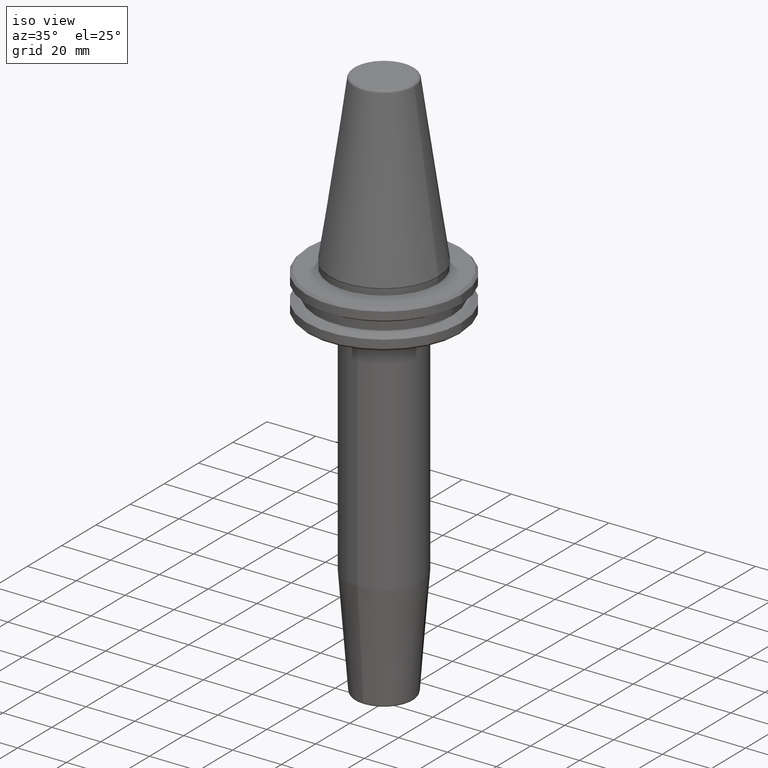
[diagram: clean part render]
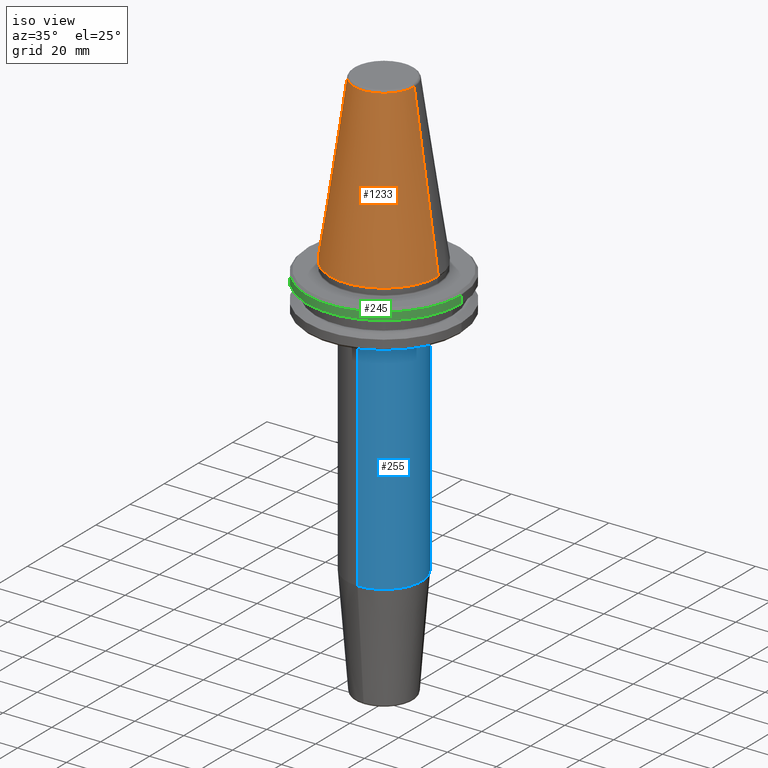
[diagram: same view with three faces highlighted in distinct colors, each labeled with its STEP entity id]
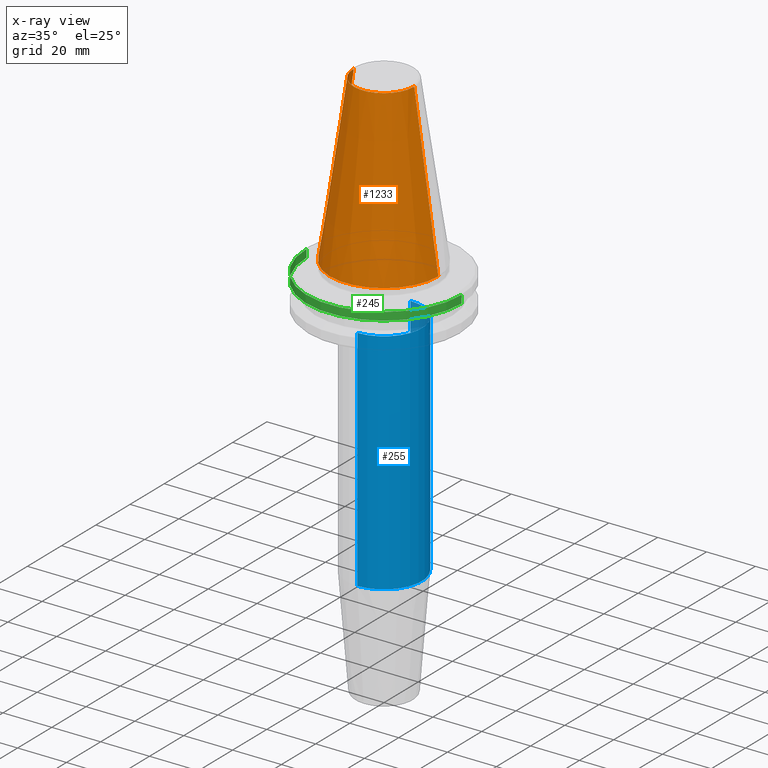
[diagram: x-ray of the same camera — body ghosted, the three highlighted faces saturated]
A machine part, iso view with three faces highlighted in distinct colors.
The next image is the same camera in x-ray (body ghosted, the three faces saturated) — at least one of them is partly hidden behind the body in this view.
Their STEP definitions:

[orange] entity #1233 — the highlighted conical surface has half-angle 8.297 deg.
#84 = DIRECTION ( 'NONE',  ( 1.000000000000000000, 0.0000000000000000000, 0.0000000000000000000 ) ) ;
#139 = AXIS2_PLACEMENT_3D ( 'NONE', #378, #683, #84 ) ;
#141 = VERTEX_POINT ( 'NONE', #157 ) ;
#142 = DIRECTION ( 'NONE',  ( -0.1443082272673071000, 0.0000000000000000000, -0.9895327864921743500 ) ) ;
#147 = CARTESIAN_POINT ( 'NONE',  ( -12.37469537611110800, 0.0000000000000000000, 67.54430822726729400 ) ) ;
#157 = CARTESIAN_POINT ( 'NONE',  ( 22.22500000000000500, 0.0000000000000000000, 0.0000000000000000000 ) ) ;
#196 = CIRCLE ( 'NONE', #139, 12.37469537611110800 ) ;
#224 = CARTESIAN_POINT ( 'NONE',  ( 0.0000000000000000000, 0.0000000000000000000, 0.0000000000000000000 ) ) ;
#238 = CARTESIAN_POINT ( 'NONE',  ( 12.37469537611110800, 2.118620309691397700E-015, 67.54430822726729400 ) ) ;
#271 = CARTESIAN_POINT ( 'NONE',  ( -12.37469537611110800, 0.0000000000000000000, 67.54430822726729400 ) ) ;
#275 = EDGE_LOOP ( 'NONE', ( #1058, #327, #406, #1221 ) ) ;
#327 = ORIENTED_EDGE ( 'NONE', *, *, #1125, .F. ) ;
#333 = DIRECTION ( 'NONE',  ( 1.000000000000000000, 0.0000000000000000000, 0.0000000000000000000 ) ) ;
#378 = CARTESIAN_POINT ( 'NONE',  ( 0.0000000000000000000, 0.0000000000000000000, 67.54430822726729400 ) ) ;
#385 = VECTOR ( 'NONE', #142, 1000.000000000000000 ) ;
#396 = EDGE_CURVE ( 'NONE', #450, #141, #597, .T. ) ;
#406 = ORIENTED_EDGE ( 'NONE', *, *, #607, .T. ) ;
#427 = DIRECTION ( 'NONE',  ( -0.0000000000000000000, -0.0000000000000000000, 1.000000000000000000 ) ) ;
#429 = CARTESIAN_POINT ( 'NONE',  ( 12.37469537611110800, 1.515463108277802100E-015, 67.54430822726729400 ) ) ;
#450 = VERTEX_POINT ( 'NONE', #996 ) ;
#524 = DIRECTION ( 'NONE',  ( -1.000000000000000000, 0.0000000000000000000, 0.0000000000000000000 ) ) ;
#597 = CIRCLE ( 'NONE', #1017, 22.22500000000000500 ) ;
#600 = VERTEX_POINT ( 'NONE', #238 ) ;
#607 = EDGE_CURVE ( 'NONE', #853, #450, #880, .T. ) ;
#608 = DIRECTION ( 'NONE',  ( 0.0000000000000000000, 0.0000000000000000000, -1.000000000000000000 ) ) ;
#619 = AXIS2_PLACEMENT_3D ( 'NONE', #793, #608, #524 ) ;
#683 = DIRECTION ( 'NONE',  ( -0.0000000000000000000, -0.0000000000000000000, 1.000000000000000000 ) ) ;
#712 = LINE ( 'NONE', #429, #1183 ) ;
#773 = EDGE_CURVE ( 'NONE', #600, #141, #712, .T. ) ;
#793 = CARTESIAN_POINT ( 'NONE',  ( 0.0000000000000000000, 0.0000000000000000000, 67.54430822726729400 ) ) ;
#853 = VERTEX_POINT ( 'NONE', #271 ) ;
#880 = LINE ( 'NONE', #147, #385 ) ;
#888 = DIRECTION ( 'NONE',  ( 0.1443082272673071000, 1.767266086135364600E-017, -0.9895327864921743500 ) ) ;
#996 = CARTESIAN_POINT ( 'NONE',  ( -22.22500000000000500, 2.721777511104993200E-015, 0.0000000000000000000 ) ) ;
#1017 = AXIS2_PLACEMENT_3D ( 'NONE', #224, #427, #333 ) ;
#1057 = CONICAL_SURFACE ( 'NONE', #619, 12.37469537611110800, 0.1448138465474191100 ) ;
#1058 = ORIENTED_EDGE ( 'NONE', *, *, #773, .F. ) ;
#1091 = FACE_OUTER_BOUND ( 'NONE', #275, .T. ) ;
#1125 = EDGE_CURVE ( 'NONE', #853, #600, #196, .T. ) ;
#1183 = VECTOR ( 'NONE', #888, 1000.000000000000000 ) ;
#1221 = ORIENTED_EDGE ( 'NONE', *, *, #396, .T. ) ;
#1233 = ADVANCED_FACE ( 'NONE', ( #1091 ), #1057, .T. ) ;

[blue] entity #255 — the highlighted cylindrical surface (partial cylindrical patch) has radius 15.5 mm, axis along (-0, 0, -1).
#15 = CARTESIAN_POINT ( 'NONE',  ( 0.0000000000000000000, -15.50000000000001100, -114.6067425191115900 ) ) ;
#21 = CARTESIAN_POINT ( 'NONE',  ( 0.0000000000000000000, -5.256097865015170500E-015, -114.6067425191115900 ) ) ;
#101 = DIRECTION ( 'NONE',  ( -0.0000000000000000000, 1.256330602389183300E-016, -1.000000000000000000 ) ) ;
#105 = DIRECTION ( 'NONE',  ( -0.0000000000000000000, 1.256330602389183300E-016, -1.000000000000000000 ) ) ;
#125 = ORIENTED_EDGE ( 'NONE', *, *, #1241, .F. ) ;
#140 = VECTOR ( 'NONE', #105, 1000.000000000000000 ) ;
#174 = EDGE_CURVE ( 'NONE', #509, #847, #665, .T. ) ;
#177 = CARTESIAN_POINT ( 'NONE',  ( 1.898202538678398000E-015, 15.50000000000000000, -114.6067425191115900 ) ) ;
#198 = AXIS2_PLACEMENT_3D ( 'NONE', #535, #806, #1158 ) ;
#204 = VERTEX_POINT ( 'NONE', #15 ) ;
#237 = EDGE_CURVE ( 'NONE', #847, #204, #424, .T. ) ;
#255 = ADVANCED_FACE ( 'NONE', ( #1145 ), #865, .T. ) ;
#279 = EDGE_CURVE ( 'NONE', #926, #204, #1079, .T. ) ;
#315 = DIRECTION ( 'NONE',  ( -0.0000000000000000000, 1.256330602389183300E-016, -1.000000000000000000 ) ) ;
#336 = LINE ( 'NONE', #989, #599 ) ;
#424 = LINE ( 'NONE', #613, #140 ) ;
#509 = VERTEX_POINT ( 'NONE', #745 ) ;
#535 = CARTESIAN_POINT ( 'NONE',  ( 0.0000000000000000000, -1.701835490922485000E-014, -20.98284271247460700 ) ) ;
#599 = VECTOR ( 'NONE', #315, 1000.000000000000000 ) ;
#613 = CARTESIAN_POINT ( 'NONE',  ( 1.898202538678398700E-015, -15.50000000000001100, -160.0000000000000000 ) ) ;
#633 = DIRECTION ( 'NONE',  ( 0.0000000000000000000, 1.000000000000000000, 0.0000000000000000000 ) ) ;
#665 = CIRCLE ( 'NONE', #198, 15.50000000000001800 ) ;
#681 = ORIENTED_EDGE ( 'NONE', *, *, #237, .T. ) ;
#713 = CARTESIAN_POINT ( 'NONE',  ( 0.0000000000000000000, 4.467959865220142400E-016, -160.0000000000000000 ) ) ;
#745 = CARTESIAN_POINT ( 'NONE',  ( 0.0000000000000000000, 15.50000000000000000, -20.98284271247460400 ) ) ;
#756 = CARTESIAN_POINT ( 'NONE',  ( 1.898202538678400300E-015, -15.50000000000003400, -20.98284271247461100 ) ) ;
#789 = DIRECTION ( 'NONE',  ( 0.0000000000000000000, 1.000000000000000000, 0.0000000000000000000 ) ) ;
#806 = DIRECTION ( 'NONE',  ( -0.0000000000000000000, 1.256330602389183300E-016, -1.000000000000000000 ) ) ;
#847 = VERTEX_POINT ( 'NONE', #756 ) ;
#865 = CYLINDRICAL_SURFACE ( 'NONE', #887, 15.50000000000001100 ) ;
#868 = AXIS2_PLACEMENT_3D ( 'NONE', #21, #915, #633 ) ;
#887 = AXIS2_PLACEMENT_3D ( 'NONE', #713, #101, #789 ) ;
#915 = DIRECTION ( 'NONE',  ( -0.0000000000000000000, 1.256330602389183300E-016, -1.000000000000000000 ) ) ;
#926 = VERTEX_POINT ( 'NONE', #177 ) ;
#989 = CARTESIAN_POINT ( 'NONE',  ( 0.0000000000000000000, 15.50000000000001100, -160.0000000000000000 ) ) ;
#1054 = EDGE_LOOP ( 'NONE', ( #1146, #681, #1235, #125 ) ) ;
#1079 = CIRCLE ( 'NONE', #868, 15.50000000000000500 ) ;
#1145 = FACE_OUTER_BOUND ( 'NONE', #1054, .T. ) ;
#1146 = ORIENTED_EDGE ( 'NONE', *, *, #174, .T. ) ;
#1158 = DIRECTION ( 'NONE',  ( 0.0000000000000000000, 1.000000000000000000, 2.238352872228135700E-016 ) ) ;
#1235 = ORIENTED_EDGE ( 'NONE', *, *, #279, .F. ) ;
#1241 = EDGE_CURVE ( 'NONE', #509, #926, #336, .T. ) ;

[green] entity #245 — the highlighted cylindrical surface (partial cylindrical patch) has radius 31.75 mm, axis along (-0, -0, 1).
#11 = EDGE_CURVE ( 'NONE', #1258, #988, #723, .T. ) ;
#17 = AXIS2_PLACEMENT_3D ( 'NONE', #1098, #807, #717 ) ;
#27 = EDGE_CURVE ( 'NONE', #721, #988, #991, .T. ) ;
#67 = ORIENTED_EDGE ( 'NONE', *, *, #158, .F. ) ;
#106 = EDGE_CURVE ( 'NONE', #164, #721, #434, .T. ) ;
#133 = LINE ( 'NONE', #305, #387 ) ;
#158 = EDGE_CURVE ( 'NONE', #164, #1258, #133, .T. ) ;
#164 = VERTEX_POINT ( 'NONE', #791 ) ;
#245 = ADVANCED_FACE ( 'NONE', ( #924 ), #395, .T. ) ;
#250 = CARTESIAN_POINT ( 'NONE',  ( 31.75000000000000000, 0.0000000000000000000, 113.5216080541959500 ) ) ;
#305 = CARTESIAN_POINT ( 'NONE',  ( -31.75000000000000000, 3.888253587292846500E-015, 113.5216080541959500 ) ) ;
#324 = DIRECTION ( 'NONE',  ( -0.0000000000000000000, -0.0000000000000000000, 1.000000000000000000 ) ) ;
#372 = CARTESIAN_POINT ( 'NONE',  ( 0.0000000000000000000, 0.0000000000000000000, -7.578163357943284800 ) ) ;
#387 = VECTOR ( 'NONE', #601, 1000.000000000000000 ) ;
#395 = CYLINDRICAL_SURFACE ( 'NONE', #1254, 31.75000000000000000 ) ;
#434 = CIRCLE ( 'NONE', #1204, 31.75000000000000000 ) ;
#471 = CARTESIAN_POINT ( 'NONE',  ( 31.75000000000000000, 0.0000000000000000000, -7.578163357943284800 ) ) ;
#491 = ORIENTED_EDGE ( 'NONE', *, *, #11, .F. ) ;
#534 = DIRECTION ( 'NONE',  ( 1.000000000000000000, 0.0000000000000000000, 0.0000000000000000000 ) ) ;
#601 = DIRECTION ( 'NONE',  ( -0.0000000000000000000, -0.0000000000000000000, 1.000000000000000000 ) ) ;
#617 = CARTESIAN_POINT ( 'NONE',  ( -31.75000000000000000, 3.888253587292846500E-015, -4.365685424949250000 ) ) ;
#717 = DIRECTION ( 'NONE',  ( 1.000000000000000000, 0.0000000000000000000, 0.0000000000000000000 ) ) ;
#721 = VERTEX_POINT ( 'NONE', #471 ) ;
#723 = CIRCLE ( 'NONE', #17, 31.75000000000000000 ) ;
#729 = DIRECTION ( 'NONE',  ( -0.0000000000000000000, -0.0000000000000000000, 1.000000000000000000 ) ) ;
#759 = ORIENTED_EDGE ( 'NONE', *, *, #27, .T. ) ;
#785 = CARTESIAN_POINT ( 'NONE',  ( 0.0000000000000000000, 0.0000000000000000000, 113.5216080541959500 ) ) ;
#791 = CARTESIAN_POINT ( 'NONE',  ( -31.75000000000000000, 3.888253587292846500E-015, -7.578163357943284800 ) ) ;
#807 = DIRECTION ( 'NONE',  ( -0.0000000000000000000, -0.0000000000000000000, 1.000000000000000000 ) ) ;
#907 = EDGE_LOOP ( 'NONE', ( #67, #949, #759, #491 ) ) ;
#924 = FACE_OUTER_BOUND ( 'NONE', #907, .T. ) ;
#949 = ORIENTED_EDGE ( 'NONE', *, *, #106, .T. ) ;
#988 = VERTEX_POINT ( 'NONE', #1128 ) ;
#991 = LINE ( 'NONE', #250, #1212 ) ;
#1041 = DIRECTION ( 'NONE',  ( -0.0000000000000000000, -0.0000000000000000000, 1.000000000000000000 ) ) ;
#1052 = DIRECTION ( 'NONE',  ( 1.000000000000000000, 0.0000000000000000000, 0.0000000000000000000 ) ) ;
#1098 = CARTESIAN_POINT ( 'NONE',  ( 0.0000000000000000000, 0.0000000000000000000, -4.365685424949250000 ) ) ;
#1128 = CARTESIAN_POINT ( 'NONE',  ( 31.75000000000000000, 0.0000000000000000000, -4.365685424949250000 ) ) ;
#1204 = AXIS2_PLACEMENT_3D ( 'NONE', #372, #1041, #1052 ) ;
#1212 = VECTOR ( 'NONE', #729, 1000.000000000000000 ) ;
#1254 = AXIS2_PLACEMENT_3D ( 'NONE', #785, #324, #534 ) ;
#1258 = VERTEX_POINT ( 'NONE', #617 ) ;